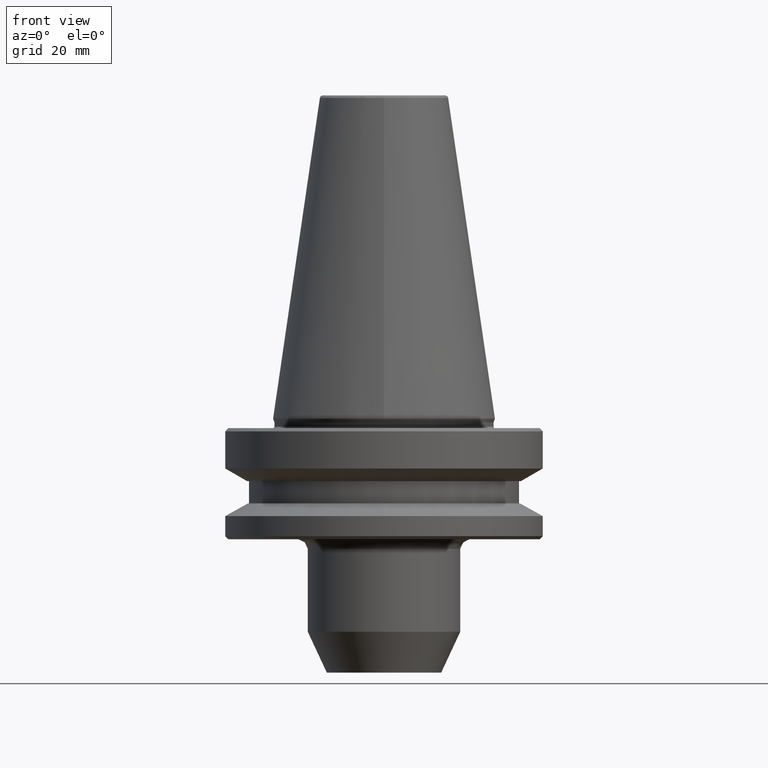
[diagram: clean part render]
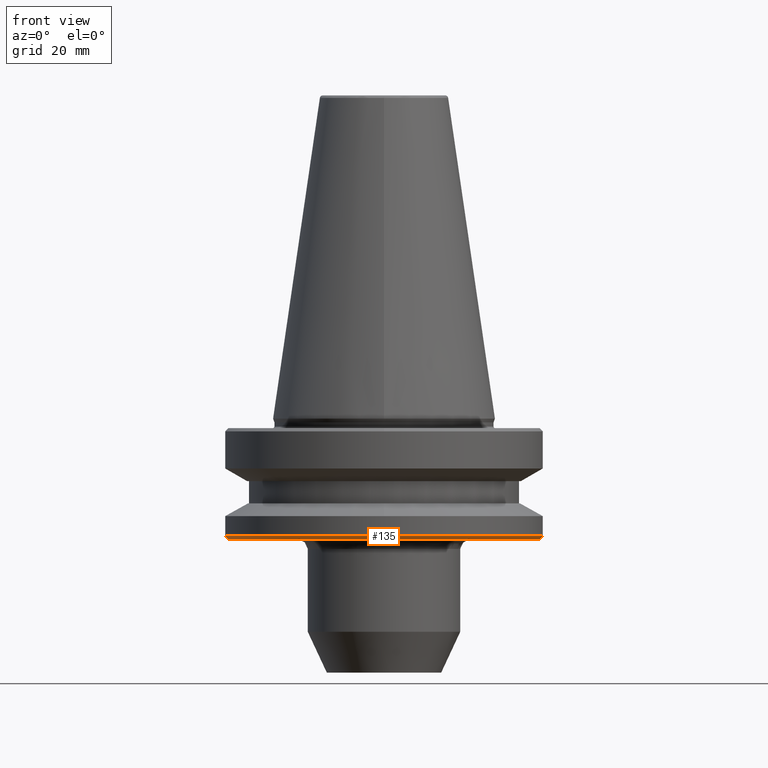
[diagram: same view with one face highlighted and labeled with its STEP entity id]
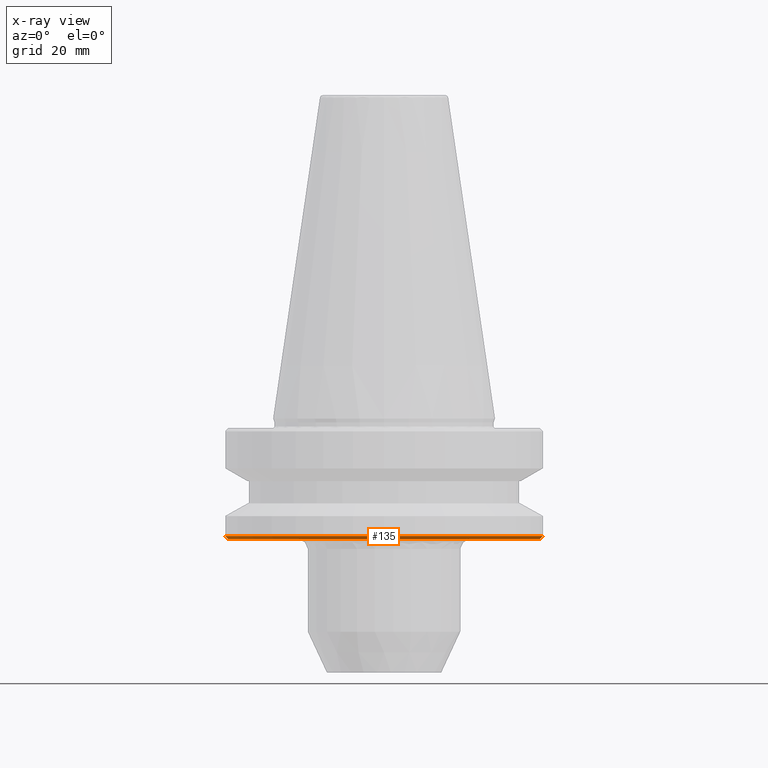
[diagram: x-ray of the same camera — body ghosted, the highlighted face saturated]
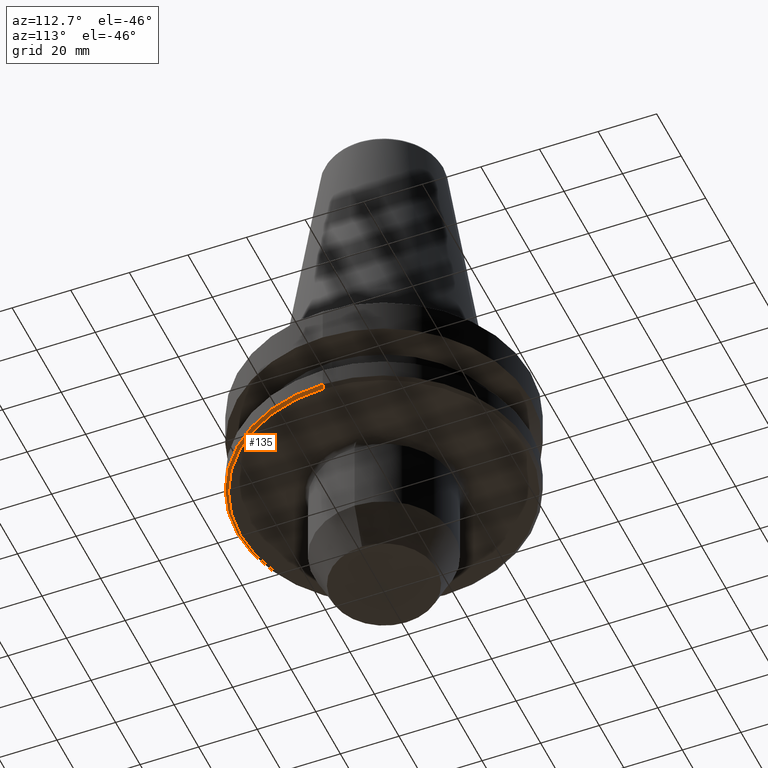
[diagram: same view with one face highlighted and labeled with its STEP entity id]
A machine part, front view. The second image highlights one B-rep face of the part: STEP entity #135.
The next image is the same camera in x-ray: the body ghosted, the highlighted face saturated — about 0% of this face is hidden behind the body in this view.
A second angle (auxiliary view) of the same face is appended — the face is thin or edge-on in the first view.
In plain terms, the highlighted conical surface has half-angle 45 deg.
Its self-contained STEP definition (entity closure, byte-faithful):
#13 = EDGE_CURVE ( 'NONE', #1315, #25, #288, .T. ) ;
#15 = ORIENTED_EDGE ( 'NONE', *, *, #1144, .T. ) ;
#21 = AXIS2_PLACEMENT_3D ( 'NONE', #1164, #1210, #100 ) ;
#22 = DIRECTION ( 'NONE',  ( 1.000000000000000000, 0.0000000000000000000, 0.0000000000000000000 ) ) ;
#25 = VERTEX_POINT ( 'NONE', #1159 ) ;
#43 = VECTOR ( 'NONE', #193, 1000.000000000000000 ) ;
#100 = DIRECTION ( 'NONE',  ( 1.000000000000000000, 0.0000000000000000000, 0.0000000000000000000 ) ) ;
#127 = AXIS2_PLACEMENT_3D ( 'NONE', #940, #280, #1063 ) ;
#135 = ADVANCED_FACE ( 'NONE', ( #1064 ), #315, .T. ) ;
#146 = EDGE_LOOP ( 'NONE', ( #1069, #281, #15, #757 ) ) ;
#193 = DIRECTION ( 'NONE',  ( -0.7071067811865474600, 8.659560562354931600E-017, 0.7071067811865475700 ) ) ;
#266 = EDGE_CURVE ( 'NONE', #828, #1082, #682, .T. ) ;
#269 = EDGE_CURVE ( 'NONE', #828, #1315, #717, .T. ) ;
#280 = DIRECTION ( 'NONE',  ( 0.0000000000000000000, -0.0000000000000000000, 1.000000000000000000 ) ) ;
#281 = ORIENTED_EDGE ( 'NONE', *, *, #266, .T. ) ;
#285 = CARTESIAN_POINT ( 'NONE',  ( 0.0000000000000000000, 0.0000000000000000000, -37.00000000000002100 ) ) ;
#288 = CIRCLE ( 'NONE', #21, 50.00000000000000000 ) ;
#315 = CONICAL_SURFACE ( 'NONE', #1335, 50.00000000000000000, 0.7853981633974482800 ) ;
#436 = CARTESIAN_POINT ( 'NONE',  ( -50.00000000000000000, 6.123233995736766100E-015, -37.00000000000002100 ) ) ;
#592 = LINE ( 'NONE', #627, #810 ) ;
#624 = DIRECTION ( 'NONE',  ( 0.7071067811865474600, 0.0000000000000000000, 0.7071067811865475700 ) ) ;
#627 = CARTESIAN_POINT ( 'NONE',  ( 50.00000000000000000, 0.0000000000000000000, -37.00000000000002100 ) ) ;
#682 = CIRCLE ( 'NONE', #127, 49.00000000000000000 ) ;
#717 = LINE ( 'NONE', #824, #43 ) ;
#752 = CARTESIAN_POINT ( 'NONE',  ( 49.00000000000000000, 0.0000000000000000000, -38.00000000000002100 ) ) ;
#757 = ORIENTED_EDGE ( 'NONE', *, *, #13, .F. ) ;
#782 = DIRECTION ( 'NONE',  ( 0.0000000000000000000, -0.0000000000000000000, 1.000000000000000000 ) ) ;
#810 = VECTOR ( 'NONE', #624, 1000.000000000000000 ) ;
#824 = CARTESIAN_POINT ( 'NONE',  ( -50.00000000000000000, 6.123233995736766100E-015, -37.00000000000002100 ) ) ;
#828 = VERTEX_POINT ( 'NONE', #955 ) ;
#940 = CARTESIAN_POINT ( 'NONE',  ( 0.0000000000000000000, 0.0000000000000000000, -38.00000000000002100 ) ) ;
#955 = CARTESIAN_POINT ( 'NONE',  ( -49.00000000000000000, 6.062001655779398500E-015, -38.00000000000002100 ) ) ;
#1063 = DIRECTION ( 'NONE',  ( 1.000000000000000000, 0.0000000000000000000, 0.0000000000000000000 ) ) ;
#1064 = FACE_OUTER_BOUND ( 'NONE', #146, .T. ) ;
#1069 = ORIENTED_EDGE ( 'NONE', *, *, #269, .F. ) ;
#1082 = VERTEX_POINT ( 'NONE', #752 ) ;
#1144 = EDGE_CURVE ( 'NONE', #1082, #25, #592, .T. ) ;
#1159 = CARTESIAN_POINT ( 'NONE',  ( 50.00000000000000000, 0.0000000000000000000, -37.00000000000002100 ) ) ;
#1164 = CARTESIAN_POINT ( 'NONE',  ( 0.0000000000000000000, 0.0000000000000000000, -37.00000000000002100 ) ) ;
#1210 = DIRECTION ( 'NONE',  ( 0.0000000000000000000, 0.0000000000000000000, 1.000000000000000000 ) ) ;
#1315 = VERTEX_POINT ( 'NONE', #436 ) ;
#1335 = AXIS2_PLACEMENT_3D ( 'NONE', #285, #782, #22 ) ;